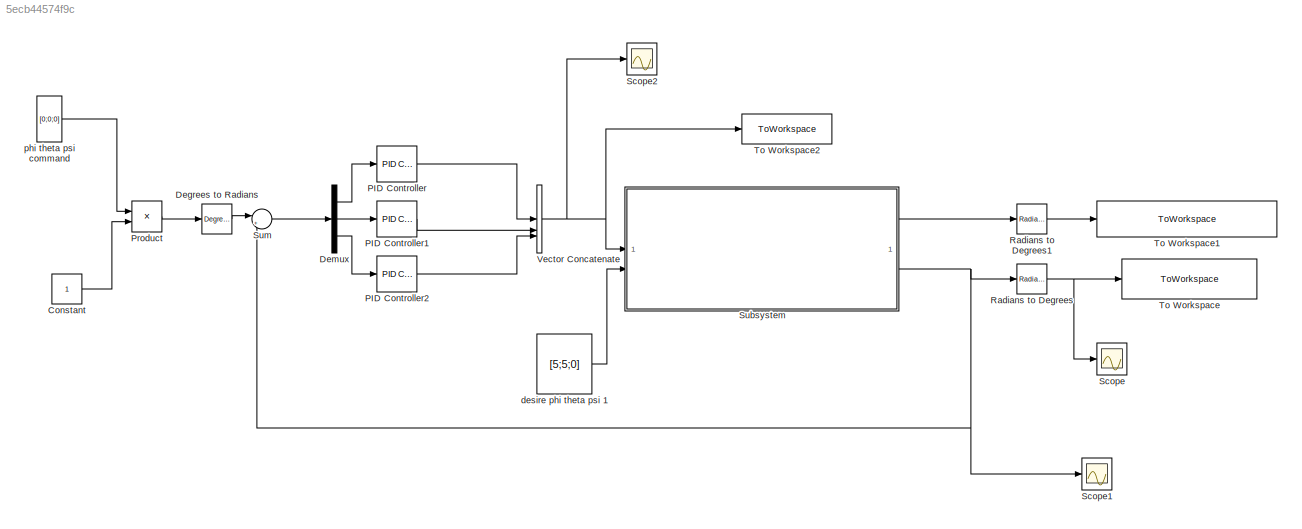
MODEL slx_5ecb44574f9c
KIND model
CONFIG AbsTol = auto
CONFIG EnableMultiTasking = off
CONFIG FixedStep = auto
CONFIG MaxStep = auto
CONFIG MinStep = auto
CONFIG RelTol = 1e-3
CONFIG SampleTimeConstraint = Unconstrained
CONFIG SolverName = ode15s
CONFIG StartTime = 0
CONFIG StopTime = 1
BLOCK [Constant] Constant
BLOCK [Reference] Degrees to Radians  REF=simulink_extras/Transformations/Degrees to
Radians
  SourceBlock = simulink_extras/Transformations/Degrees to\nRadians
  SourceType = DegreesToRadians
BLOCK [Demux] Demux
  Outputs = 3
BLOCK [Reference] PID Controller  REF=slpidlib/PID Controller
  LibrarySourceBlock = simulink/Continuous/PID Controller
  SourceBlock = slpidlib/PID Controller
  SourceType = PID 1dof
BLOCK [Reference] PID Controller1  REF=slpidlib/PID Controller
  LibrarySourceBlock = simulink/Continuous/PID Controller
  SourceBlock = slpidlib/PID Controller
  SourceType = PID 1dof
BLOCK [Reference] PID Controller2  REF=slpidlib/PID Controller
  LibrarySourceBlock = simulink/Continuous/PID Controller
  SourceBlock = slpidlib/PID Controller
  SourceType = PID 1dof
BLOCK [Product] Product
BLOCK [Reference] Radians to Degrees  REF=simulink_extras/Transformations/Radians
to Degrees
  SourceBlock = simulink_extras/Transformations/Radians\nto Degrees
  SourceType = RadiansToDegrees
BLOCK [Reference] Radians to Degrees1  REF=simulink_extras/Transformations/Radians
to Degrees
  SourceBlock = simulink_extras/Transformations/Radians\nto Degrees
  SourceType = RadiansToDegrees
BLOCK [Scope] Scope
  Floating = off
  NumInputPorts = 1
  ScopeSpecificationString = Simulink.scopes.TimeScopeBlockCfg('CurrentConfiguration', extmgr.ConfigurationSet(extmgr.Configuration('Core','General UI',true),extmgr.Configuration('Core','Source UI',true),extmgr.Configuration('Sources','WiredSimulink',true,'DataLoggingVariableName','ScopeData1'),extmgr.Configuration('Visuals','Time Domain',true,'SerializedDisplays',{struct('MinYLimReal','-0.78512','MaxYLimReal','5.64279','YLab...<+1359ch>
BLOCK [Scope] Scope1
  Floating = off
  NumInputPorts = 1
  ScopeSpecificationString = Simulink.scopes.TimeScopeBlockCfg('CurrentConfiguration', extmgr.ConfigurationSet(extmgr.Configuration('Core','General UI',true),extmgr.Configuration('Core','Source UI',true),extmgr.Configuration('Sources','WiredSimulink',true,'DataLoggingVariableName','ScopeData2'),extmgr.Configuration('Visuals','Time Domain',true,'SerializedDisplays',{struct('MinYLimReal','-0.0137','MaxYLimReal','0.09849','YLabe...<+1357ch>
BLOCK [Scope] Scope2
  Floating = off
  NumInputPorts = 1
  ScopeSpecificationString = Simulink.scopes.TimeScopeBlockCfg('CurrentConfiguration', extmgr.ConfigurationSet(extmgr.Configuration('Core','General UI',true),extmgr.Configuration('Core','Source UI',true),extmgr.Configuration('Sources','WiredSimulink',true,'DataLoggingVariableName','ScopeData3'),extmgr.Configuration('Visuals','Time Domain',true,'SerializedDisplays',{struct('MinYLimReal','-8.77999','MaxYLimReal','1.04478','YLab...<+1437ch>
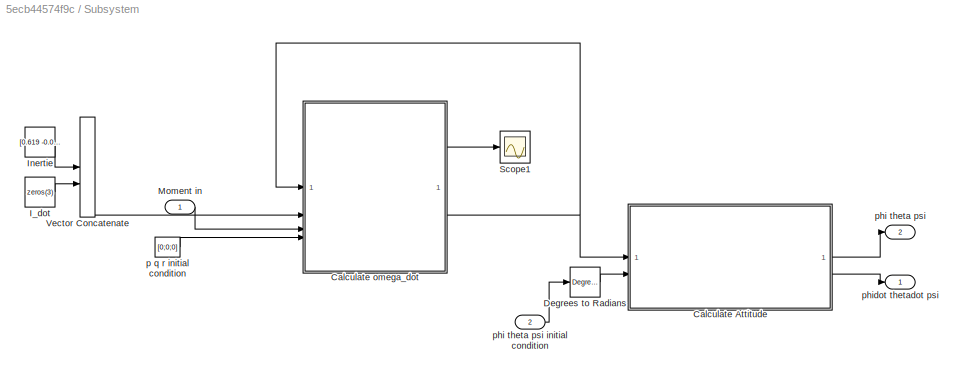
BLOCK [SubSystem] Subsystem
BLOCK [Constant] Subsystem/ p q r initial condition
  Value = [0;0;0]
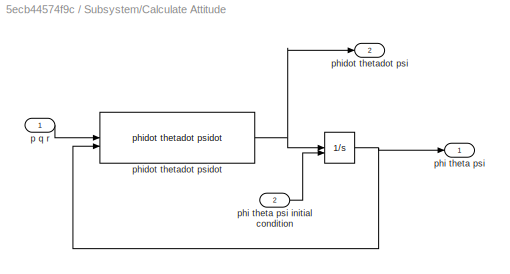
BLOCK [SubSystem] Subsystem/Calculate Attitude 
BLOCK [Integrator] Subsystem/Calculate Attitude / 
  InitialConditionSource = external
BLOCK [Inport] Subsystem/Calculate Attitude /p q r
BLOCK [Outport] Subsystem/Calculate Attitude /phi theta psi 
BLOCK [Inport] Subsystem/Calculate Attitude /phi theta psi initial condition 
  Port = 2
BLOCK [Outport] Subsystem/Calculate Attitude /phidot thetadot psi
  Port = 2
BLOCK [Reference] Subsystem/Calculate Attitude /phidot thetadot psidot  REF=shared6dofsys/DCM & Euler Angles (Euler)/phidot  (lib defined in slx_91fbb8bad28b)
thetadot
psidot
  SourceBlock = shared6dofsys/DCM & Euler Angles (Euler)/phidot\nthetadot\npsidot
  SourceType = SubSystem
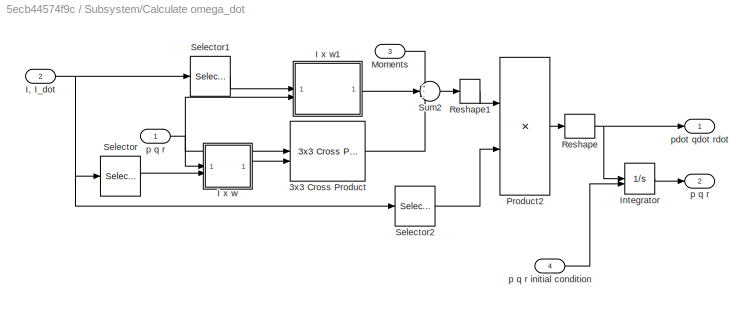
BLOCK [SubSystem] Subsystem/Calculate omega_dot
  AncestorBlock = shared6dofsys/Calculate omega_dot
  LibrarySourceBlock = shared6dofsys/Calculate omega_dot
  PermitHierarchicalResolution = ExplicitOnly
BLOCK [Reference] Subsystem/Calculate omega_dot/3x3 Cross Product  REF=sharedutil/3x3 Cross Product
  SourceBlock = sharedutil/3x3 Cross Product
  SourceType = CrossProduct
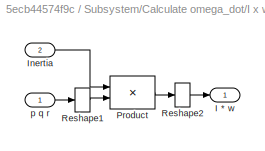
BLOCK [SubSystem] Subsystem/Calculate omega_dot/I x w
  NameLocation = top
BLOCK [Outport] Subsystem/Calculate omega_dot/I x w/I * w
  VectorParamsAs1DForOutWhenUnconnected = off
BLOCK [Inport] Subsystem/Calculate omega_dot/I x w/Inertia
  Port = 2
BLOCK [Product] Subsystem/Calculate omega_dot/I x w/Product
  InputSameDT = on
  Multiplication = Matrix(*)
  OutDataTypeStr = Inherit: Same as first input
  SaturateOnIntegerOverflow = on
BLOCK [Reshape] Subsystem/Calculate omega_dot/I x w/Reshape1
  OutputDimensionality = Column vector (2-D)
BLOCK [Reshape] Subsystem/Calculate omega_dot/I x w/Reshape2
BLOCK [Inport] Subsystem/Calculate omega_dot/I x w/p q r
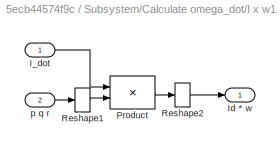
BLOCK [SubSystem] Subsystem/Calculate omega_dot/I x w1
  NameLocation = top
BLOCK [Inport] Subsystem/Calculate omega_dot/I x w1/I_dot
BLOCK [Outport] Subsystem/Calculate omega_dot/I x w1/Id * w
  VectorParamsAs1DForOutWhenUnconnected = off
BLOCK [Product] Subsystem/Calculate omega_dot/I x w1/Product
  InputSameDT = on
  Multiplication = Matrix(*)
  OutDataTypeStr = Inherit: Same as first input
  SaturateOnIntegerOverflow = on
BLOCK [Reshape] Subsystem/Calculate omega_dot/I x w1/Reshape1
  OutputDimensionality = Column vector (2-D)
BLOCK [Reshape] Subsystem/Calculate omega_dot/I x w1/Reshape2
BLOCK [Inport] Subsystem/Calculate omega_dot/I x w1/p q r
  Port = 2
BLOCK [Inport] Subsystem/Calculate omega_dot/I, I_dot
  OutDataTypeStr = double
  Port = 2
BLOCK [Integrator] Subsystem/Calculate omega_dot/Integrator
  InitialConditionSource = external
BLOCK [Inport] Subsystem/Calculate omega_dot/Moments
  OutDataTypeStr = double
  Port = 3
BLOCK [Product] Subsystem/Calculate omega_dot/Product2
  Inputs = */
  Multiplication = Matrix(*)
  NameLocation = top
  OutDataTypeStr = Inherit: Same as first input
  SaturateOnIntegerOverflow = on
BLOCK [Reshape] Subsystem/Calculate omega_dot/Reshape
BLOCK [Reshape] Subsystem/Calculate omega_dot/Reshape1
  OutputDimensionality = Row vector (2-D)
BLOCK [Selector] Subsystem/Calculate omega_dot/Selector
  IndexOptions = Index vector (dialog),Select all
  Indices = 1:3,-1
  InputPortWidth = 2
  NumberOfDimensions = 2
  OutputSizes = 1
BLOCK [Selector] Subsystem/Calculate omega_dot/Selector1
  IndexOptions = Index vector (dialog),Select all
  Indices = 4:6,-1
  InputPortWidth = 2
  NumberOfDimensions = 2
  OutputSizes = 1
BLOCK [Selector] Subsystem/Calculate omega_dot/Selector2
  IndexOptions = Index vector (dialog),Select all
  Indices = 1:3,-1
  InputPortWidth = 2
  NumberOfDimensions = 2
  OutputSizes = 1
BLOCK [Sum] Subsystem/Calculate omega_dot/Sum2
  Inputs = +--
  SaturateOnIntegerOverflow = on
BLOCK [Outport] Subsystem/Calculate omega_dot/p q  r
  Port = 2
BLOCK [Inport] Subsystem/Calculate omega_dot/p q r
  OutDataTypeStr = double
BLOCK [Inport] Subsystem/Calculate omega_dot/p q r initial condition
  Port = 4
BLOCK [Outport] Subsystem/Calculate omega_dot/pdot qdot rdot
  OutDataTypeStr = double
  VectorParamsAs1DForOutWhenUnconnected = off
BLOCK [Reference] Subsystem/Degrees to Radians  REF=simulink_extras/Transformations/Degrees to
Radians
  SourceBlock = simulink_extras/Transformations/Degrees to\nRadians
  SourceType = DegreesToRadians
BLOCK [Constant] Subsystem/I_dot
  Value = zeros(3)
BLOCK [Constant] Subsystem/Inertie
  Value = [0.619 -0.008 0;-0.008 0.782 0;0 0 1.226]
BLOCK [Inport] Subsystem/Moment in
BLOCK [Scope] Subsystem/Scope1
  Floating = off
  NumInputPorts = 1
  ScopeSpecificationString = Simulink.scopes.TimeScopeBlockCfg('CurrentConfiguration', extmgr.ConfigurationSet(extmgr.Configuration('Core','General UI',true),extmgr.Configuration('Core','Source UI',true),extmgr.Configuration('Sources','WiredSimulink',true,'DataLoggingVariableName','ScopeData3'),extmgr.Configuration('Visuals','Time Domain',true,'SerializedDisplays',{struct('MinYLimReal','-11.23403','MaxYLimReal','1.33153','YLa...<+1467ch>
BLOCK [Concatenate] Subsystem/Vector Concatenate
  Mode = Multidimensional array
BLOCK [Outport] Subsystem/phi theta psi 
  Port = 2
BLOCK [Inport] Subsystem/phi theta psi initial condition 
  Port = 2
BLOCK [Outport] Subsystem/phidot thetadot psi
BLOCK [Sum] Sum
  Inputs = |+-
BLOCK [ToWorkspace] To Workspace
  FixptAsFi = on
  MaxDataPoints = inf
  SampleTime = -1
  SaveFormat = Timeseries
  VariableName = phi_theta_psi
BLOCK [ToWorkspace] To Workspace1
  FixptAsFi = on
  MaxDataPoints = inf
  SampleTime = -1
  SaveFormat = Timeseries
  VariableName = phi_theta_psi_dot
BLOCK [ToWorkspace] To Workspace2
  FixptAsFi = on
  MaxDataPoints = inf
  SampleTime = -1
  SaveFormat = Timeseries
  VariableName = torque
BLOCK [Concatenate] Vector Concatenate
  NumInputs = 3
BLOCK [Constant] desire phi theta psi 1
  Value = [5;5;0]
BLOCK [Constant] phi theta psi command
  Value = [0;0;0]
LINE Constant:1 -> Product:2
LINE Degrees to Radians:1 -> Sum:1
LINE Demux:1 -> PID Controller:1
LINE Demux:2 -> PID Controller1:1
LINE Demux:3 -> PID Controller2:1
LINE PID Controller1:1 -> Vector Concatenate:2
LINE PID Controller2:1 -> Vector Concatenate:3
LINE PID Controller:1 -> Vector Concatenate:1
LINE Product:1 -> Degrees to Radians:1
LINE Radians to Degrees1:1 -> To Workspace1:1
NET Radians to Degrees:1 -> Scope:1, To Workspace:1
LINE Subsystem/ p q r initial condition:1 -> Subsystem/Calculate omega_dot:4
NET Subsystem/Calculate Attitude / :1 -> Subsystem/Calculate Attitude /phi theta psi :1, Subsystem/Calculate Attitude /phidot thetadot psidot:2
LINE Subsystem/Calculate Attitude /p q r:1 -> Subsystem/Calculate Attitude /phidot thetadot psidot:1
LINE Subsystem/Calculate Attitude /phi theta psi initial condition :1 -> Subsystem/Calculate Attitude / :2
NET Subsystem/Calculate Attitude /phidot thetadot psidot:1 -> Subsystem/Calculate Attitude / :1, Subsystem/Calculate Attitude /phidot thetadot psi:1
LINE Subsystem/Calculate Attitude :1 -> Subsystem/phi theta psi :1
LINE Subsystem/Calculate Attitude :2 -> Subsystem/phidot thetadot psi:1
LINE Subsystem/Calculate omega_dot:1 -> Subsystem/Scope1:1
NET Subsystem/Calculate omega_dot:2 -> Subsystem/Calculate Attitude :1, Subsystem/Calculate omega_dot:1
LINE Subsystem/Degrees to Radians:1 -> Subsystem/Calculate Attitude :2
LINE Subsystem/I_dot:1 -> Subsystem/Vector Concatenate:2
LINE Subsystem/Inertie:1 -> Subsystem/Vector Concatenate:1
LINE Subsystem/Moment in:1 -> Subsystem/Calculate omega_dot:3
LINE Subsystem/Vector Concatenate:1 -> Subsystem/Calculate omega_dot:2
LINE Subsystem/phi theta psi initial condition :1 -> Subsystem/Degrees to Radians:1
LINE Subsystem:1 -> Radians to Degrees1:1
NET Subsystem:2 -> Radians to Degrees:1, Scope1:1, Sum:2
LINE Sum:1 -> Demux:1
NET Vector Concatenate:1 -> Scope2:1, Subsystem:1, To Workspace2:1
LINE desire phi theta psi 1:1 -> Subsystem:2
LINE phi theta psi command:1 -> Product:1
note: NET lines group one-source signal fan-out (src -> all destinations, sorted); 1:1 wires keep LINE
